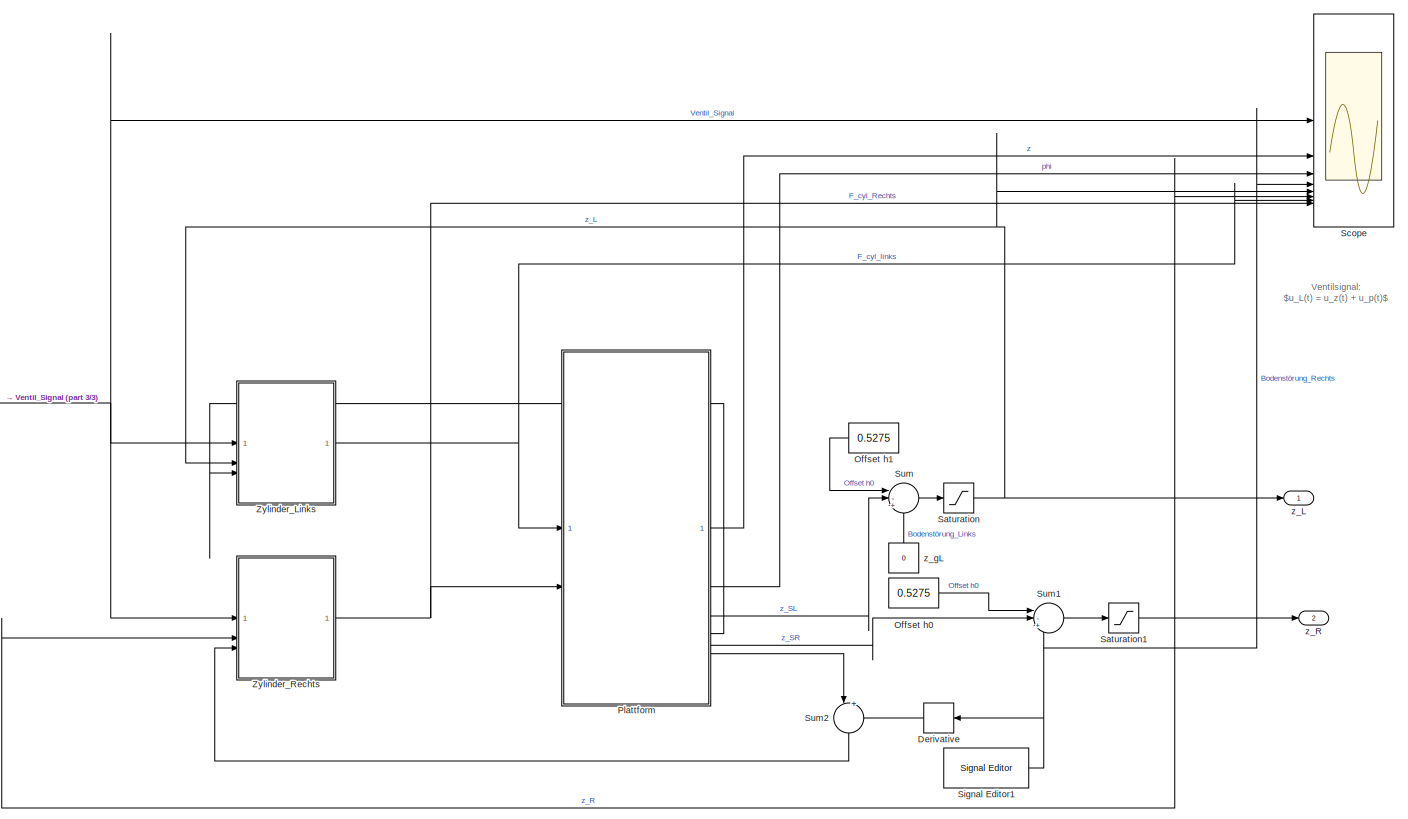
[diagram: root canvas - part 1/3, most of the canvas]
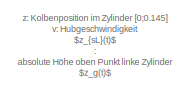
[diagram: root canvas - part 2/3, top left region]
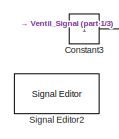
[diagram: root canvas - part 3/3, middle left region]
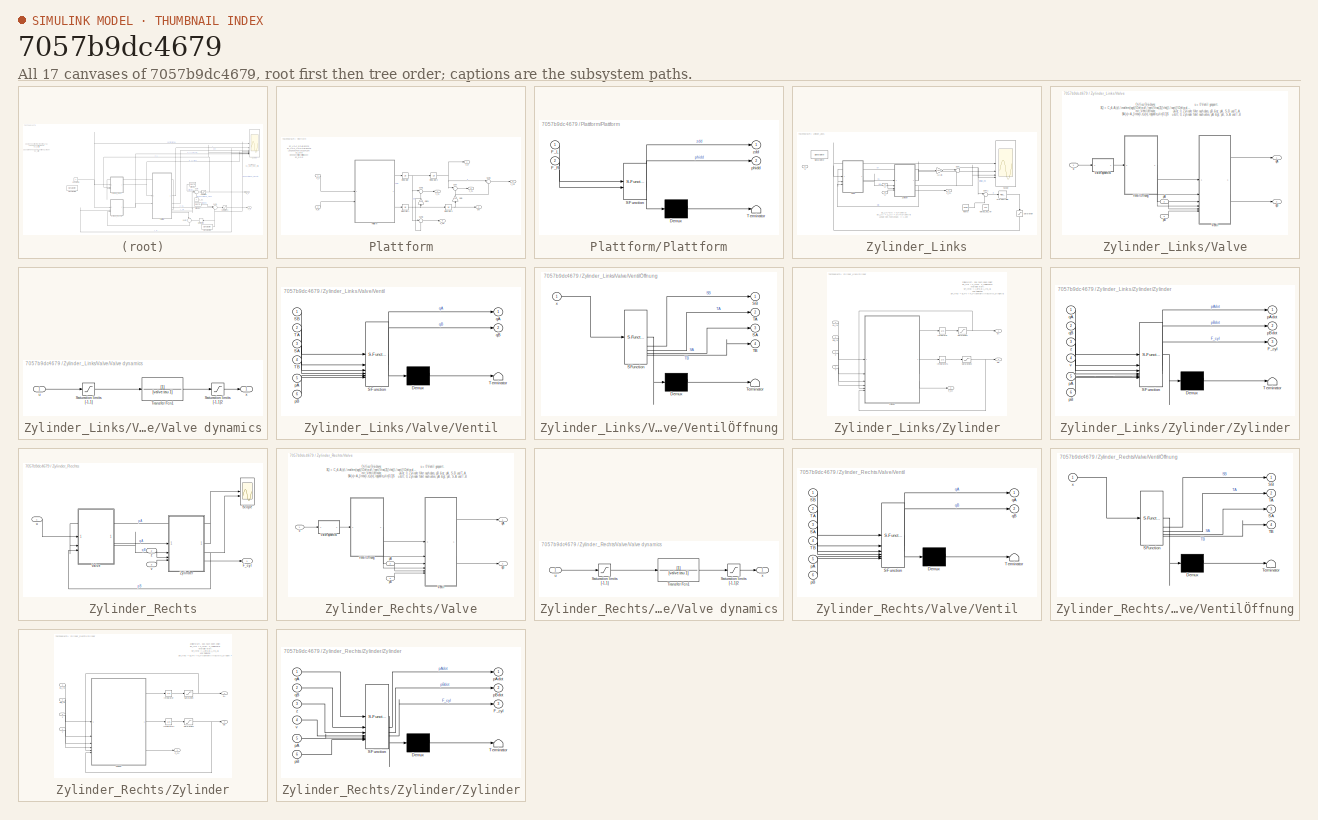
[diagram: thumbnail index - all 17 canvases of the model, root first then tree order]
MODEL slx_7057b9dc4679
KIND model
CONFIG AbsTol = auto
CONFIG EnableMultiTasking = off
CONFIG FixedStep = auto
CONFIG InitFcn = hyd_parameter
CONFIG MaxStep = auto
CONFIG MinStep = auto
CONFIG RelTol = 1e-3
CONFIG SampleTimeConstraint = Unconstrained
CONFIG SolverName = VariableStepAuto
CONFIG StartTime = 0.0
CONFIG StopTime = 30
BLOCK [Constant] Constant3
BLOCK [Derivative] Derivative
  NameLocation = top
BLOCK [Constant] Offset h0
  Value = 0.5275
BLOCK [Constant] Offset h1
  NameLocation = top
  Value = 0.5275
BLOCK [SubSystem] Plattform
BLOCK [Inport] Plattform/F_L
BLOCK [Inport] Plattform/F_R
  Port = 2
BLOCK [Gain] Plattform/Gain
  Gain = 0.9
  NameLocation = right
BLOCK [Gain] Plattform/Gain1
  Gain = 0.9
  NameLocation = right
BLOCK [Integrator] Plattform/Integrator
BLOCK [Integrator] Plattform/Integrator1
BLOCK [Integrator] Plattform/Integrator2
  InitialCondition = 0.6
BLOCK [Integrator] Plattform/Integrator3
BLOCK [SubSystem] Plattform/Plattform
  ErrorFcn = Stateflow.Translate.translate
  PermitHierarchicalResolution = ExplicitOnly
  SFBlockType = MATLAB Function
  TreatAsAtomicUnit = on
BLOCK [Demux] Plattform/Plattform/ Demux 
  Outputs = 1
BLOCK [S-Function] Plattform/Plattform/ SFunction 
  EnableBusSupport = off
  FunctionName = sf_sfun
  PortCounts = [2 3]
  SFcnIsStateOwnerBlock = off
  SFunctionDeploymentMode = off
  Tag = Stateflow S-Function 7
BLOCK [Terminator] Plattform/Plattform/ Terminator 
BLOCK [Inport] Plattform/Plattform/F_L
BLOCK [Inport] Plattform/Plattform/F_R
  Port = 2
BLOCK [Outport] Plattform/Plattform/phidd
  Port = 2
BLOCK [Outport] Plattform/Plattform/zdd
BLOCK [Sum] Plattform/Sum
  Inputs = |++
BLOCK [Sum] Plattform/Sum1
  Inputs = |++
BLOCK [Sum] Plattform/Sum2
  Inputs = |+-
BLOCK [Sum] Plattform/Sum3
  Inputs = |+-
BLOCK [Outport] Plattform/phi
  Port = 2
BLOCK [Outport] Plattform/v_sL
  Port = 4
BLOCK [Outport] Plattform/v_sR
  Port = 6
BLOCK [Outport] Plattform/z_p
BLOCK [Outport] Plattform/z_sL
  Port = 3
BLOCK [Outport] Plattform/z_sR
  Port = 5
BLOCK [Saturate] Saturation
  LowerLimit = 0
  UpperLimit = 0.145
BLOCK [Saturate] Saturation1
  LowerLimit = 0
  UpperLimit = 0.145
BLOCK [Scope] Scope
  ActiveDisplayString = 7
  ActiveDisplayYMaximum = 66545.684568252938
  ActiveDisplayYMinimum = -28869.174120408497
  ContainerLayout = {"WindowBounds":[801,1300,866,733]}
  Floating = off
  GraphicalSettings = {"AxesScalingProperties":{"AlignXAxis":"Center","AlignYAxis":"Center","AutoScaleXAxisLimits":false,"AxesScaling":"Manual","AxesScalingNumUpdates":10,"ExpandOnly":true,"ScaleAxesLimitsAtStop":false,"XAxisDataRange":100,"YAxisDataRange":80},"DisplayProperties":{"ColorOrder":["auto","auto","auto","auto","auto","auto","auto","auto","auto","auto","auto","auto","auto","auto","auto","auto","auto","auto",...<+5025ch>
  LayoutDimensionsString = [4, 2]
  MultipleDisplayCache = [{"MaxYLimMag":1.1,"MaxYLimReal":1.1,"MinYLimMag":0.9,"MinYLimReal":0.9,"PlotAsMagnitudePhase":false,"ShowGrid":true,"ShowLegend":false,"Title":"%<SignalLabel>","YLabel":""},{"MaxYLimMag":0.70736112197466661,"MaxYLimReal":0.70736112197466661,"MinYLimMag":0.58807098644725919,"MinYLimReal":0.58807098644725919,"PlotAsMagnitudePhase":false,"ShowGrid":true,"ShowLegend":false,"Title":"%<SignalLabel>","Y...<+1215ch>
  NumInputPorts = 8
  ScopeFrameLocation = window
  WasSavedAsWebScope = on
  WindowPosition = [390.000000,199.000000,785.000000,667.000000,]
BLOCK [Reference] Signal Editor1  REF=SignalEditorBlockLib/Signal Editor
  LibrarySourceBlock = simulink/Sources/Signal Editor
  SourceBlock = SignalEditorBlockLib/Signal Editor
  SourceType = SignalEditor
  UserDataPersistent = on
BLOCK [Reference] Signal Editor2  REF=SignalEditorBlockLib/Signal Editor
  LibrarySourceBlock = simulink/Sources/Signal Editor
  SourceBlock = SignalEditorBlockLib/Signal Editor
  SourceType = SignalEditor
  UserDataPersistent = on
BLOCK [Sum] Sum
  Inputs = |-+-
BLOCK [Sum] Sum1
  Inputs = |-+-
BLOCK [Sum] Sum2
  Inputs = |+-
  NameLocation = left
BLOCK [SubSystem] Zylinder_Links
BLOCK [Gain] Zylinder_Links/AA//AB
  Gain = cyl.AA/cyl.AB
BLOCK [Outport] Zylinder_Links/F_cyl
BLOCK [Reference] Zylinder_Links/PID Controller  REF=slpidlib/PID Controller
  LibrarySourceBlock = simulink/Continuous/PID Controller
  SourceBlock = slpidlib/PID Controller
  SourceType = PID 1dof
BLOCK [Reference] Zylinder_Links/Ramp  REF=simulink/Sources/Ramp
  SourceBlock = simulink/Sources/Ramp
  SourceType = Ramp
BLOCK [Saturate] Zylinder_Links/Saturation
  LowerLimit = -1
  NameLocation = left
  UpperLimit = 1
BLOCK [Scope] Zylinder_Links/Scope
  ActiveDisplayYMaximum = 1.25
  ActiveDisplayYMinimum = -1.25
  DataLoggingVariableName = ScopeData1
  Floating = off
  GraphicalSettings = {"Style":{"BackgroundColor":[0.12941176470588237,0.12941176470588237,0.12941176470588237],"AxesColor":[0.07058823529411765,0.07058823529411765,0.07058823529411765],"LabelsColor":[0.8509803921568627,0.8509803921568627,0.8509803921568627],"PreserveColors":false,"Visible":[true,true,true,true,true,true],"LineStyle":["-","-","-","-","-","-"],"LineWidth":[1.5,1.5,1.5,1.5,1.5,1.5],"BarWidth":[0.9,0.9,0....<+3933ch>
  LayoutDimensionsString = [6, 1]
  MultipleDisplayCache = [{"MaxYLimMag":1.25,"MaxYLimReal":1.25,"MinYLimMag":0,"MinYLimReal":-1.25,"PlotAsMagnitudePhase":false,"ShowGrid":true,"ShowLegend":false,"Title":"%<SignalLabel>","YLabel":""},{"MaxYLimMag":1.3941712703221392E+7,"MaxYLimReal":1.3941712703221392E+7,"MinYLimMag":0,"MinYLimReal":-1.43796807813571E+6,"PlotAsMagnitudePhase":false,"ShowGrid":true,"ShowLegend":false,"Title":"%<SignalLabel>","YLabel":""},...<+761ch>
  NumInputPorts = 6
  ScopeFrameLocation = window
  WasSavedAsWebScope = on
  WindowPosition = [247.000000,162.000000,750.000000,692.000000,]
BLOCK [Reference] Zylinder_Links/Signal Editor  REF=SignalEditorBlockLib/Signal Editor
  LibrarySourceBlock = simulink/Sources/Signal Editor
  SourceBlock = SignalEditorBlockLib/Signal Editor
  SourceType = SignalEditor
  UserDataPersistent = on
BLOCK [Sum] Zylinder_Links/Sum
  Inputs = |-+
BLOCK [Sum] Zylinder_Links/Sum1
  Inputs = |-+
BLOCK [SubSystem] Zylinder_Links/Valve
BLOCK [SubSystem] Zylinder_Links/Valve/Valve dynamics
BLOCK [Saturate] Zylinder_Links/Valve/Valve dynamics/Saturation limits [-1,1]
  LowerLimit = -1
  UpperLimit = 1
BLOCK [Saturate] Zylinder_Links/Valve/Valve dynamics/Saturation limits [-1,1]2
  LowerLimit = -1
  UpperLimit = 1
BLOCK [TransferFcn] Zylinder_Links/Valve/Valve dynamics/Transfer Fcn1
  Denominator = [valve.tau 1]
BLOCK [Inport] Zylinder_Links/Valve/Valve dynamics/u
BLOCK [Outport] Zylinder_Links/Valve/Valve dynamics/x
  VectorParamsAs1DForOutWhenUnconnected = off
BLOCK [SubSystem] Zylinder_Links/Valve/Ventil
  ErrorFcn = Stateflow.Translate.translate
  PermitHierarchicalResolution = ExplicitOnly
  SFBlockType = MATLAB Function
  TreatAsAtomicUnit = on
BLOCK [Demux] Zylinder_Links/Valve/Ventil/ Demux 
  Outputs = 1
BLOCK [S-Function] Zylinder_Links/Valve/Ventil/ SFunction 
  EnableBusSupport = off
  FunctionName = sf_sfun
  PortCounts = [6 3]
  SFcnIsStateOwnerBlock = off
  SFunctionDeploymentMode = off
  Tag = Stateflow S-Function 2
BLOCK [Terminator] Zylinder_Links/Valve/Ventil/ Terminator 
BLOCK [Inport] Zylinder_Links/Valve/Ventil/SA
  Port = 3
BLOCK [Inport] Zylinder_Links/Valve/Ventil/SB
BLOCK [Inport] Zylinder_Links/Valve/Ventil/TA
  Port = 2
BLOCK [Inport] Zylinder_Links/Valve/Ventil/TB
  Port = 4
BLOCK [Inport] Zylinder_Links/Valve/Ventil/pA
  Port = 5
BLOCK [Inport] Zylinder_Links/Valve/Ventil/pB
  Port = 6
BLOCK [Outport] Zylinder_Links/Valve/Ventil/qA
BLOCK [Outport] Zylinder_Links/Valve/Ventil/qB
  Port = 2
BLOCK [SubSystem] Zylinder_Links/Valve/VentilÖffnung
  ErrorFcn = Stateflow.Translate.translate
  PermitHierarchicalResolution = ExplicitOnly
  SFBlockType = MATLAB Function
  TreatAsAtomicUnit = on
BLOCK [Demux] Zylinder_Links/Valve/VentilÖffnung/ Demux 
  Outputs = 1
BLOCK [S-Function] Zylinder_Links/Valve/VentilÖffnung/ SFunction 
  EnableBusSupport = off
  FunctionName = sf_sfun
  PortCounts = [1 5]
  SFcnIsStateOwnerBlock = off
  SFunctionDeploymentMode = off
  Tag = Stateflow S-Function 3
BLOCK [Terminator] Zylinder_Links/Valve/VentilÖffnung/ Terminator 
BLOCK [Outport] Zylinder_Links/Valve/VentilÖffnung/SA
  Port = 3
BLOCK [Outport] Zylinder_Links/Valve/VentilÖffnung/SB
BLOCK [Outport] Zylinder_Links/Valve/VentilÖffnung/TA
  Port = 2
BLOCK [Outport] Zylinder_Links/Valve/VentilÖffnung/TB
  Port = 4
BLOCK [Inport] Zylinder_Links/Valve/VentilÖffnung/x
BLOCK [Inport] Zylinder_Links/Valve/pA
  Port = 2
BLOCK [Inport] Zylinder_Links/Valve/pB
  Port = 3
BLOCK [Outport] Zylinder_Links/Valve/qA
BLOCK [Outport] Zylinder_Links/Valve/qB
  Port = 2
BLOCK [Inport] Zylinder_Links/Valve/u
BLOCK [SubSystem] Zylinder_Links/Zylinder
BLOCK [Outport] Zylinder_Links/Zylinder/F_cyl
  Port = 3
BLOCK [Integrator] Zylinder_Links/Zylinder/Integrator
  InitialCondition = valve.pT
BLOCK [Integrator] Zylinder_Links/Zylinder/Integrator1
  InitialCondition = 9e6
BLOCK [Saturate] Zylinder_Links/Zylinder/Saturation1
  LowerLimit = cyl.pMin
  UpperLimit = cyl.pMax
BLOCK [Saturate] Zylinder_Links/Zylinder/Saturation2
  LowerLimit = cyl.pMin
  UpperLimit = cyl.pMax
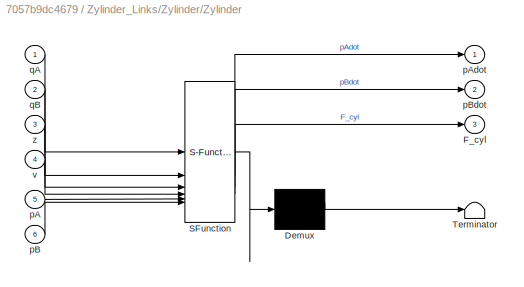
BLOCK [SubSystem] Zylinder_Links/Zylinder/Zylinder
  ErrorFcn = Stateflow.Translate.translate
  PermitHierarchicalResolution = ExplicitOnly
  SFBlockType = MATLAB Function
  TreatAsAtomicUnit = on
BLOCK [Demux] Zylinder_Links/Zylinder/Zylinder/ Demux 
  Outputs = 1
BLOCK [S-Function] Zylinder_Links/Zylinder/Zylinder/ SFunction 
  EnableBusSupport = off
  FunctionName = sf_sfun
  PortCounts = [6 4]
  SFcnIsStateOwnerBlock = off
  SFunctionDeploymentMode = off
  Tag = Stateflow S-Function 1
BLOCK [Terminator] Zylinder_Links/Zylinder/Zylinder/ Terminator 
BLOCK [Outport] Zylinder_Links/Zylinder/Zylinder/F_cyl
  Port = 3
BLOCK [Inport] Zylinder_Links/Zylinder/Zylinder/pA
  Port = 5
BLOCK [Outport] Zylinder_Links/Zylinder/Zylinder/pAdot
BLOCK [Inport] Zylinder_Links/Zylinder/Zylinder/pB
  Port = 6
BLOCK [Outport] Zylinder_Links/Zylinder/Zylinder/pBdot
  Port = 2
BLOCK [Inport] Zylinder_Links/Zylinder/Zylinder/qA
BLOCK [Inport] Zylinder_Links/Zylinder/Zylinder/qB
  Port = 2
BLOCK [Inport] Zylinder_Links/Zylinder/Zylinder/v
  Port = 4
BLOCK [Inport] Zylinder_Links/Zylinder/Zylinder/z
  Port = 3
BLOCK [Outport] Zylinder_Links/Zylinder/pA
BLOCK [Outport] Zylinder_Links/Zylinder/pB
  Port = 2
BLOCK [Inport] Zylinder_Links/Zylinder/qA_IN
BLOCK [Inport] Zylinder_Links/Zylinder/qB_IN
  Port = 2
BLOCK [Inport] Zylinder_Links/Zylinder/v
  Port = 4
BLOCK [Inport] Zylinder_Links/Zylinder/z
  Port = 3
BLOCK [Constant] Zylinder_Links/deltap_eq_ref
  NameLocation = right
  Value = 2e6
BLOCK [Inport] Zylinder_Links/u
BLOCK [Inport] Zylinder_Links/v
  Port = 3
BLOCK [Inport] Zylinder_Links/z
  Port = 2
BLOCK [SubSystem] Zylinder_Rechts
BLOCK [Outport] Zylinder_Rechts/F_cyl
BLOCK [Scope] Zylinder_Rechts/Scope
  ActiveDisplayYMaximum = 1
  ActiveDisplayYMinimum = -1
  DataLoggingVariableName = ScopeData2
  Floating = off
  GraphicalSettings = {"Style":{"BackgroundColor":[0.12941176470588237,0.12941176470588237,0.12941176470588237],"AxesColor":[0.07058823529411765,0.07058823529411765,0.07058823529411765],"LabelsColor":[0.8509803921568627,0.8509803921568627,0.8509803921568627],"PreserveColors":false,"Visible":[true,true],"LineStyle":["-","-"],"LineWidth":[1.5,1.5],"BarWidth":[0.9,0.9],"LineColor":["auto","auto"],"LineFaceAlpha":[1,1],"Li...<+2435ch>
  LayoutDimensionsString = [2, 1]
  MultipleDisplayCache = [{"MaxYLimMag":1,"MaxYLimReal":1,"MinYLimMag":0,"MinYLimReal":-1,"PlotAsMagnitudePhase":false,"ShowGrid":true,"ShowLegend":false,"Title":"%<SignalLabel>","YLabel":""},{"MaxYLimMag":1,"MaxYLimReal":1,"MinYLimMag":0,"MinYLimReal":-1,"PlotAsMagnitudePhase":false,"ShowGrid":true,"ShowLegend":false,"Title":"%<SignalLabel>","YLabel":""}]
  NumInputPorts = 2
  ScopeFrameLocation = window
  WasSavedAsWebScope = on
  WindowPosition = [726.000000,289.000000,560.000000,420.000000,]
BLOCK [SubSystem] Zylinder_Rechts/Valve
BLOCK [SubSystem] Zylinder_Rechts/Valve/Valve dynamics
BLOCK [Saturate] Zylinder_Rechts/Valve/Valve dynamics/Saturation limits [-1,1]
  LowerLimit = -1
  UpperLimit = 1
BLOCK [Saturate] Zylinder_Rechts/Valve/Valve dynamics/Saturation limits [-1,1]2
  LowerLimit = -1
  UpperLimit = 1
BLOCK [TransferFcn] Zylinder_Rechts/Valve/Valve dynamics/Transfer Fcn1
  Denominator = [valve.tau 1]
BLOCK [Inport] Zylinder_Rechts/Valve/Valve dynamics/u
BLOCK [Outport] Zylinder_Rechts/Valve/Valve dynamics/x
  VectorParamsAs1DForOutWhenUnconnected = off
BLOCK [SubSystem] Zylinder_Rechts/Valve/Ventil
  ErrorFcn = Stateflow.Translate.translate
  PermitHierarchicalResolution = ExplicitOnly
  SFBlockType = MATLAB Function
  TreatAsAtomicUnit = on
BLOCK [Demux] Zylinder_Rechts/Valve/Ventil/ Demux 
  Outputs = 1
BLOCK [S-Function] Zylinder_Rechts/Valve/Ventil/ SFunction 
  EnableBusSupport = off
  FunctionName = sf_sfun
  PortCounts = [6 3]
  SFcnIsStateOwnerBlock = off
  SFunctionDeploymentMode = off
  Tag = Stateflow S-Function 4
BLOCK [Terminator] Zylinder_Rechts/Valve/Ventil/ Terminator 
BLOCK [Inport] Zylinder_Rechts/Valve/Ventil/SA
  Port = 3
BLOCK [Inport] Zylinder_Rechts/Valve/Ventil/SB
BLOCK [Inport] Zylinder_Rechts/Valve/Ventil/TA
  Port = 2
BLOCK [Inport] Zylinder_Rechts/Valve/Ventil/TB
  Port = 4
BLOCK [Inport] Zylinder_Rechts/Valve/Ventil/pA
  Port = 5
BLOCK [Inport] Zylinder_Rechts/Valve/Ventil/pB
  Port = 6
BLOCK [Outport] Zylinder_Rechts/Valve/Ventil/qA
BLOCK [Outport] Zylinder_Rechts/Valve/Ventil/qB
  Port = 2
BLOCK [SubSystem] Zylinder_Rechts/Valve/VentilÖffnung
  ErrorFcn = Stateflow.Translate.translate
  PermitHierarchicalResolution = ExplicitOnly
  SFBlockType = MATLAB Function
  TreatAsAtomicUnit = on
BLOCK [Demux] Zylinder_Rechts/Valve/VentilÖffnung/ Demux 
  Outputs = 1
BLOCK [S-Function] Zylinder_Rechts/Valve/VentilÖffnung/ SFunction 
  EnableBusSupport = off
  FunctionName = sf_sfun
  PortCounts = [1 5]
  SFcnIsStateOwnerBlock = off
  SFunctionDeploymentMode = off
  Tag = Stateflow S-Function 5
BLOCK [Terminator] Zylinder_Rechts/Valve/VentilÖffnung/ Terminator 
BLOCK [Outport] Zylinder_Rechts/Valve/VentilÖffnung/SA
  Port = 3
BLOCK [Outport] Zylinder_Rechts/Valve/VentilÖffnung/SB
BLOCK [Outport] Zylinder_Rechts/Valve/VentilÖffnung/TA
  Port = 2
BLOCK [Outport] Zylinder_Rechts/Valve/VentilÖffnung/TB
  Port = 4
BLOCK [Inport] Zylinder_Rechts/Valve/VentilÖffnung/x
BLOCK [Inport] Zylinder_Rechts/Valve/pA
  Port = 2
BLOCK [Inport] Zylinder_Rechts/Valve/pB
  Port = 3
BLOCK [Outport] Zylinder_Rechts/Valve/qA
BLOCK [Outport] Zylinder_Rechts/Valve/qB
  Port = 2
BLOCK [Inport] Zylinder_Rechts/Valve/u
BLOCK [SubSystem] Zylinder_Rechts/Zylinder
BLOCK [Outport] Zylinder_Rechts/Zylinder/F_cyl
  Port = 3
BLOCK [Integrator] Zylinder_Rechts/Zylinder/Integrator
  InitialCondition = valve.pT
BLOCK [Integrator] Zylinder_Rechts/Zylinder/Integrator1
  InitialCondition = 9e6
BLOCK [Saturate] Zylinder_Rechts/Zylinder/Saturation
  LowerLimit = cyl.pMin
  UpperLimit = cyl.pMax
BLOCK [Saturate] Zylinder_Rechts/Zylinder/Saturation1
  LowerLimit = cyl.pMin
  UpperLimit = cyl.pMax
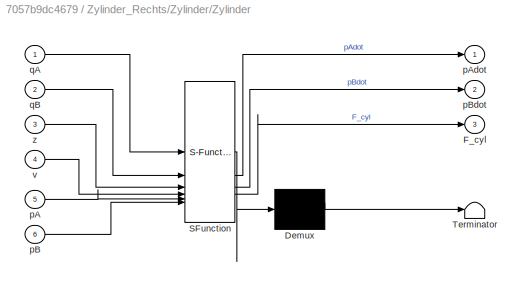
BLOCK [SubSystem] Zylinder_Rechts/Zylinder/Zylinder
  ErrorFcn = Stateflow.Translate.translate
  PermitHierarchicalResolution = ExplicitOnly
  SFBlockType = MATLAB Function
  TreatAsAtomicUnit = on
BLOCK [Demux] Zylinder_Rechts/Zylinder/Zylinder/ Demux 
  Outputs = 1
BLOCK [S-Function] Zylinder_Rechts/Zylinder/Zylinder/ SFunction 
  EnableBusSupport = off
  FunctionName = sf_sfun
  PortCounts = [6 4]
  SFcnIsStateOwnerBlock = off
  SFunctionDeploymentMode = off
  Tag = Stateflow S-Function 6
BLOCK [Terminator] Zylinder_Rechts/Zylinder/Zylinder/ Terminator 
BLOCK [Outport] Zylinder_Rechts/Zylinder/Zylinder/F_cyl
  Port = 3
BLOCK [Inport] Zylinder_Rechts/Zylinder/Zylinder/pA
  Port = 5
BLOCK [Outport] Zylinder_Rechts/Zylinder/Zylinder/pAdot
BLOCK [Inport] Zylinder_Rechts/Zylinder/Zylinder/pB
  Port = 6
BLOCK [Outport] Zylinder_Rechts/Zylinder/Zylinder/pBdot
  Port = 2
BLOCK [Inport] Zylinder_Rechts/Zylinder/Zylinder/qA
BLOCK [Inport] Zylinder_Rechts/Zylinder/Zylinder/qB
  Port = 2
BLOCK [Inport] Zylinder_Rechts/Zylinder/Zylinder/v
  Port = 4
BLOCK [Inport] Zylinder_Rechts/Zylinder/Zylinder/z
  Port = 3
BLOCK [Outport] Zylinder_Rechts/Zylinder/pA
BLOCK [Outport] Zylinder_Rechts/Zylinder/pB
  Port = 2
BLOCK [Inport] Zylinder_Rechts/Zylinder/qA_IN
BLOCK [Inport] Zylinder_Rechts/Zylinder/qB_IN
  Port = 2
BLOCK [Inport] Zylinder_Rechts/Zylinder/v
  Port = 4
BLOCK [Inport] Zylinder_Rechts/Zylinder/z
  Port = 3
BLOCK [Inport] Zylinder_Rechts/u
BLOCK [Inport] Zylinder_Rechts/v
  Port = 3
BLOCK [Inport] Zylinder_Rechts/z
  Port = 2
BLOCK [Outport] z_L
BLOCK [Outport] z_R
  Port = 2
BLOCK [Constant] z_gL
  NameLocation = right
  Value = 0
ANNOTATION (root): Ventilsignal: $u_L(t) = u_z(t) + u_p(t)$
ANNOTATION (root): z: Kolbenposition im Zylinder [0;0.145] v: Hubgeschwindigkeit $z_{sL}(t)$ : absolute Höhe oben Punkt linke Zylinder $z_g(t)$ : absolute Bodenhöhe Reifen starr, kein Feder
ANNOTATION Plattform: $z_L(t)=z_p(t) + l/2*\phi(t)$ $v_L(t) = z_L(t)' = z(t)'*l/2*\phi(t)'$ Länge des Fahrzeugs: l = 1.8m $z_p(t)$ Höhe der Plattformmittelpunkt $z_p(0)$
ANNOTATION Zylinder_Links: $z_L(t)=z(t) + l/2*\phi(t)$ $v_L(t) = z_L(t)' = z(t)'*l/2*\phi(t)'$ Länge des Fahrzeugs: l = 1.8m
ANNOTATION Zylinder_Links/Valve: u = 0 Ventil gesperrt. u> 0, Zylinder fährt nach oben, pB > pA, S-B und T-A u < 0, Zylinder fährt nach unten, pA > pB, S-A und T-B
ANNOTATION Zylinder_Links/Valve: Orifice-Gleichung: $Q = C_d\,A(x)\,\mathrm{sgn}(\Delta p)\,\sqrt{\frac{2}{\rho}}\,\sqrt{|\Delta p|}$ mit Ventilöffnung: $A(x)=A_{\max}\,a_v(x),\qquad a_v\in[0,1]$
ANNOTATION Zylinder_Links/Zylinder: Zyliderkraft, das nach oben zeigt: $F_{cyl} = F_{hyd}- F_{Reibung}$ Hydraulik Kraft: $F_{hyd} = A_B*p_B-A_A*p_A$ und Reibung: $F_{fric} = B_v*v + F_c*\tanh\left(\frac{v}{v_s}\right)$ und Druck $\dot{p}_A = \frac{\beta_e}{V_A}*( q_A - \dot{V}_A - q_{Leak} )$
ANNOTATION Zylinder_Rechts/Valve: u = 0 Ventil gesperrt. u> 0, Zylinder fährt nach oben, pB > pA, S-B und T-A u < 0, Zylinder fährt nach unten, pA > pB, S-A und T-B
ANNOTATION Zylinder_Rechts/Valve: Orifice-Gleichung: $Q = C_d\,A(x)\,\mathrm{sgn}(\Delta p)\,\sqrt{\frac{2}{\rho}}\,\sqrt{|\Delta p|}$ mit Ventilöffnung: $A(x)=A_{\max}\,a_v(x),\qquad a_v\in[0,1]$
ANNOTATION Zylinder_Rechts/Zylinder: Zyliderkraft, das nach oben zeigt: $F_{cyl} = F_{hyd}- F_{Reibung}$ Hydraulik Kraft: $F_{hyd} = A_B*p_B-A_A*p_A$ und Reibung: $F_{fric} = B_v*v + F_c*\tanh\left(\frac{v}{v_s}\right)$ und Druck $\dot{p}_A = \frac{\beta_e}{V_A}*( q_A - \dot{V}_A - q_{Leak} )$
NET Constant3:1 -> Scope:1, Zylinder_Links:1, Zylinder_Rechts:1
LINE Derivative:1 -> Sum2:2
LINE Offset h0:1 -> Sum1:1
LINE Offset h1:1 -> Sum:1
LINE Plattform/F_L:1 -> Plattform/Plattform:1
LINE Plattform/F_R:1 -> Plattform/Plattform:2
NET Plattform/Gain1:1 -> Plattform/Sum1:2, Plattform/Sum3:2
NET Plattform/Gain:1 -> Plattform/Sum2:2, Plattform/Sum:2
NET Plattform/Integrator1:1 -> Plattform/Gain1:1, Plattform/Integrator3:1
NET Plattform/Integrator2:1 -> Plattform/Sum2:1, Plattform/Sum:1, Plattform/z_p:1
NET Plattform/Integrator3:1 -> Plattform/Gain:1, Plattform/phi:1
NET Plattform/Integrator:1 -> Plattform/Integrator2:1, Plattform/Sum1:1, Plattform/Sum3:1
LINE Plattform/Plattform:1 -> Plattform/Integrator:1
LINE Plattform/Plattform:2 -> Plattform/Integrator1:1
LINE Plattform/Sum1:1 -> Plattform/v_sL:1
LINE Plattform/Sum2:1 -> Plattform/z_sR:1
LINE Plattform/Sum3:1 -> Plattform/v_sR:1
LINE Plattform/Sum:1 -> Plattform/z_sL:1
LINE Plattform:1 -> Scope:2
LINE Plattform:2 -> Scope:3
LINE Plattform:3 -> Sum:2
LINE Plattform:4 -> Zylinder_Links:3
LINE Plattform:5 -> Sum1:2
LINE Plattform:6 -> Sum2:1
NET Saturation1:1 -> Scope:6, Zylinder_Rechts:2, z_R:1
NET Saturation:1 -> Scope:5, Zylinder_Links:2, z_L:1
NET Signal Editor1:1 -> Derivative:1, Scope:4, Sum1:3
LINE Sum1:1 -> Saturation1:1
LINE Sum2:1 -> Zylinder_Rechts:3
LINE Sum:1 -> Saturation:1
LINE Zylinder_Links/AA//AB:1 -> Zylinder_Links/Sum:1
LINE Zylinder_Links/PID Controller:1 -> Zylinder_Links/Saturation:1
LINE Zylinder_Links/Ramp:1 -> Zylinder_Links/Sum1:2
NET Zylinder_Links/Saturation:1 -> Zylinder_Links/Scope:1, Zylinder_Links/Valve:1
LINE Zylinder_Links/Sum1:1 -> Zylinder_Links/PID Controller:1
NET Zylinder_Links/Sum:1 -> Zylinder_Links/Scope:4, Zylinder_Links/Sum1:1
LINE Zylinder_Links/Valve/Valve dynamics/Saturation limits [-1,1]2:1 -> Zylinder_Links/Valve/Valve dynamics/x:1
LINE Zylinder_Links/Valve/Valve dynamics/Saturation limits [-1,1]:1 -> Zylinder_Links/Valve/Valve dynamics/Transfer Fcn1:1
LINE Zylinder_Links/Valve/Valve dynamics/Transfer Fcn1:1 -> Zylinder_Links/Valve/Valve dynamics/Saturation limits [-1,1]2:1
LINE Zylinder_Links/Valve/Valve dynamics/u:1 -> Zylinder_Links/Valve/Valve dynamics/Saturation limits [-1,1]:1
LINE Zylinder_Links/Valve/Valve dynamics:1 -> Zylinder_Links/Valve/VentilÖffnung:1
LINE Zylinder_Links/Valve/Ventil:1 -> Zylinder_Links/Valve/qA:1
LINE Zylinder_Links/Valve/Ventil:2 -> Zylinder_Links/Valve/qB:1
LINE Zylinder_Links/Valve/VentilÖffnung:1 -> Zylinder_Links/Valve/Ventil:1
LINE Zylinder_Links/Valve/VentilÖffnung:2 -> Zylinder_Links/Valve/Ventil:2
LINE Zylinder_Links/Valve/VentilÖffnung:3 -> Zylinder_Links/Valve/Ventil:3
LINE Zylinder_Links/Valve/VentilÖffnung:4 -> Zylinder_Links/Valve/Ventil:4
LINE Zylinder_Links/Valve/pA:1 -> Zylinder_Links/Valve/Ventil:5
LINE Zylinder_Links/Valve/pB:1 -> Zylinder_Links/Valve/Ventil:6
LINE Zylinder_Links/Valve/u:1 -> Zylinder_Links/Valve/Valve dynamics:1
LINE Zylinder_Links/Valve:1 -> Zylinder_Links/Zylinder:1
LINE Zylinder_Links/Valve:2 -> Zylinder_Links/Zylinder:2
LINE Zylinder_Links/Zylinder/Integrator1:1 -> Zylinder_Links/Zylinder/Saturation2:1
LINE Zylinder_Links/Zylinder/Integrator:1 -> Zylinder_Links/Zylinder/Saturation1:1
NET Zylinder_Links/Zylinder/Saturation1:1 -> Zylinder_Links/Zylinder/Zylinder:5, Zylinder_Links/Zylinder/pA:1
NET Zylinder_Links/Zylinder/Saturation2:1 -> Zylinder_Links/Zylinder/Zylinder:6, Zylinder_Links/Zylinder/pB:1
LINE Zylinder_Links/Zylinder/Zylinder:1 -> Zylinder_Links/Zylinder/Integrator:1
LINE Zylinder_Links/Zylinder/Zylinder:2 -> Zylinder_Links/Zylinder/Integrator1:1
LINE Zylinder_Links/Zylinder/Zylinder:3 -> Zylinder_Links/Zylinder/F_cyl:1
LINE Zylinder_Links/Zylinder/qA_IN:1 -> Zylinder_Links/Zylinder/Zylinder:1
LINE Zylinder_Links/Zylinder/qB_IN:1 -> Zylinder_Links/Zylinder/Zylinder:2
LINE Zylinder_Links/Zylinder/v:1 -> Zylinder_Links/Zylinder/Zylinder:4
LINE Zylinder_Links/Zylinder/z:1 -> Zylinder_Links/Zylinder/Zylinder:3
NET Zylinder_Links/Zylinder:1 -> Zylinder_Links/AA//AB:1, Zylinder_Links/Scope:2, Zylinder_Links/Valve:2
NET Zylinder_Links/Zylinder:2 -> Zylinder_Links/Scope:3, Zylinder_Links/Sum:2, Zylinder_Links/Valve:3
LINE Zylinder_Links/Zylinder:3 -> Zylinder_Links/F_cyl:1
LINE Zylinder_Links/v:1 -> Zylinder_Links/Zylinder:4
LINE Zylinder_Links/z:1 -> Zylinder_Links/Zylinder:3
NET Zylinder_Links:1 -> Plattform:1, Scope:7
LINE Zylinder_Rechts/Valve/Valve dynamics/Saturation limits [-1,1]2:1 -> Zylinder_Rechts/Valve/Valve dynamics/x:1
LINE Zylinder_Rechts/Valve/Valve dynamics/Saturation limits [-1,1]:1 -> Zylinder_Rechts/Valve/Valve dynamics/Transfer Fcn1:1
LINE Zylinder_Rechts/Valve/Valve dynamics/Transfer Fcn1:1 -> Zylinder_Rechts/Valve/Valve dynamics/Saturation limits [-1,1]2:1
LINE Zylinder_Rechts/Valve/Valve dynamics/u:1 -> Zylinder_Rechts/Valve/Valve dynamics/Saturation limits [-1,1]:1
LINE Zylinder_Rechts/Valve/Valve dynamics:1 -> Zylinder_Rechts/Valve/VentilÖffnung:1
LINE Zylinder_Rechts/Valve/Ventil:1 -> Zylinder_Rechts/Valve/qA:1
LINE Zylinder_Rechts/Valve/Ventil:2 -> Zylinder_Rechts/Valve/qB:1
LINE Zylinder_Rechts/Valve/VentilÖffnung:1 -> Zylinder_Rechts/Valve/Ventil:1
LINE Zylinder_Rechts/Valve/VentilÖffnung:2 -> Zylinder_Rechts/Valve/Ventil:2
LINE Zylinder_Rechts/Valve/VentilÖffnung:3 -> Zylinder_Rechts/Valve/Ventil:3
LINE Zylinder_Rechts/Valve/VentilÖffnung:4 -> Zylinder_Rechts/Valve/Ventil:4
LINE Zylinder_Rechts/Valve/pA:1 -> Zylinder_Rechts/Valve/Ventil:5
LINE Zylinder_Rechts/Valve/pB:1 -> Zylinder_Rechts/Valve/Ventil:6
LINE Zylinder_Rechts/Valve/u:1 -> Zylinder_Rechts/Valve/Valve dynamics:1
LINE Zylinder_Rechts/Valve:1 -> Zylinder_Rechts/Zylinder:1
LINE Zylinder_Rechts/Valve:2 -> Zylinder_Rechts/Zylinder:2
LINE Zylinder_Rechts/Zylinder/Integrator1:1 -> Zylinder_Rechts/Zylinder/Saturation1:1
LINE Zylinder_Rechts/Zylinder/Integrator:1 -> Zylinder_Rechts/Zylinder/Saturation:1
NET Zylinder_Rechts/Zylinder/Saturation1:1 -> Zylinder_Rechts/Zylinder/Zylinder:6, Zylinder_Rechts/Zylinder/pB:1
NET Zylinder_Rechts/Zylinder/Saturation:1 -> Zylinder_Rechts/Zylinder/Zylinder:5, Zylinder_Rechts/Zylinder/pA:1
LINE Zylinder_Rechts/Zylinder/Zylinder:1 -> Zylinder_Rechts/Zylinder/Integrator:1
LINE Zylinder_Rechts/Zylinder/Zylinder:2 -> Zylinder_Rechts/Zylinder/Integrator1:1
LINE Zylinder_Rechts/Zylinder/Zylinder:3 -> Zylinder_Rechts/Zylinder/F_cyl:1
LINE Zylinder_Rechts/Zylinder/qA_IN:1 -> Zylinder_Rechts/Zylinder/Zylinder:1
LINE Zylinder_Rechts/Zylinder/qB_IN:1 -> Zylinder_Rechts/Zylinder/Zylinder:2
LINE Zylinder_Rechts/Zylinder/v:1 -> Zylinder_Rechts/Zylinder/Zylinder:4
LINE Zylinder_Rechts/Zylinder/z:1 -> Zylinder_Rechts/Zylinder/Zylinder:3
NET Zylinder_Rechts/Zylinder:1 -> Zylinder_Rechts/Scope:1, Zylinder_Rechts/Valve:2
NET Zylinder_Rechts/Zylinder:2 -> Zylinder_Rechts/Scope:2, Zylinder_Rechts/Valve:3
LINE Zylinder_Rechts/Zylinder:3 -> Zylinder_Rechts/F_cyl:1
LINE Zylinder_Rechts/u:1 -> Zylinder_Rechts/Valve:1
LINE Zylinder_Rechts/v:1 -> Zylinder_Rechts/Zylinder:4
LINE Zylinder_Rechts/z:1 -> Zylinder_Rechts/Zylinder:3
NET Zylinder_Rechts:1 -> Plattform:2, Scope:8
LINE z_gL:1 -> Sum:3
note: NET lines group one-source signal fan-out (src -> all destinations, sorted); 1:1 wires keep LINE
CHART Plattform/Plattform states=1 transitions=1
  STATE_LABEL 'eML_blk_kernel()'
  STATE_LABEL 'SCRIPT:\nfunction [zdd, phidd] = platform_2dof(F_L, F_R)\ng   = 9.81;\nm_total = 6000;\nm_s = m_total/3;    \nl   = 1.8;           \n\nJphi = m_s * l^2 / 12;\n\n\nzdd = (F_L + F_R - m_s * g) / m_s;\n\n\nphidd = ( (l/2)*F_L - (l/2)*F_R ) / Jphi;\n\n\nend\n'
CHART Zylinder_Links/Zylinder/Zylinder states=1 transitions=1
  STATE_LABEL 'eML_blk_kernel()'
  STATE_LABEL 'SCRIPT:\nfunction [pAdot,pBdot,F_cyl] = cylinder(qA,qB,z,v,pA,pB)\ncyl.D = 0.09; % m datenblatt\ncyl.d = 0.07; %m datenblatt\ncyl.AB  =pi*0.09^2/4;       % m^2 (Kolbenseite) datenblatt\ncyl.AA  = pi*(0.09^2-0.07^2)/4;       % m^2 (Stangenseite)  datenblatt\ncyl.L   = 0.145;          % m datenblatt\ncyl.VA0 = 2e-4;         % m^3 geschätzt\ncyl.VB0 = 2e-4;         % m^3 geschätzt\ncyl.Vmin = 1e-5;        % m...<+853ch>'
CHART Zylinder_Links/Valve/Ventil states=1 transitions=1
  STATE_LABEL 'eML_blk_kernel()'
  STATE_LABEL 'SCRIPT:\nfunction [qA, qB] = valve_portflows(SB, TA, SA, TB, pA, pB)\n% Eingänge:\n%   SA, TA, SB, TB : relative Öffnungen [0..1]\n%       SA = P(Supply) -> A\n%       TA = A -> T(Tank)\n%       SB = P(Supply) -> B\n%       TB = B -> T(Tank)\n%   pA, pB         : Kammerdrücke\n%\n% Ausgänge:\n%   qA, qB         : Netto-Volumenstrom IN die Kammern A/B \n%                   (positiv bedeutet: Zufluss in die Kam...<+1292ch>'
CHART Zylinder_Links/Valve/VentilÖffnung states=1 transitions=1
  STATE_LABEL 'eML_blk_kernel()'
  STATE_LABEL 'SCRIPT:\nfunction [SB, TA, SA, TB] = relative_opening(x)\n% 4/3-Proportionalventil:\n% Eingabe x in [-1..1] -> relative Öffnungen SA, SB, TA, TB in [0..1]\n%   SA: P(Supply) -> A\n%   SB: P(Supply) -> B\n%   TA: A -> T(Tank)\n%   TB: B -> T(Tank)\n% Ventil-Parameter (typische Startwerte für Proportionalventil)\nvalve.udz = 0.05;   % Totzone (5%) um Nullstellung\n\n% Stützstellen für |x| nach Totzone-Normieru...<+2134ch>'
CHART Zylinder_Rechts/Valve/Ventil states=1 transitions=1
  STATE_LABEL 'eML_blk_kernel()'
  STATE_LABEL 'SCRIPT:\nfunction [qA, qB] = valve_portflows(SB, TA, SA, TB, pA, pB)\n% Eingänge:\n%   SA, TA, SB, TB : relative Öffnungen [0..1]\n%       SA = P(Supply) -> A\n%       TA = A -> T(Tank)\n%       SB = P(Supply) -> B\n%       TB = B -> T(Tank)\n%   pA, pB         : Kammerdrücke\n%\n% Ausgänge:\n%   qA, qB         : Netto-Volumenstrom IN die Kammern A/B \n%                   (positiv bedeutet: Zufluss in die Kam...<+1292ch>'
CHART Zylinder_Rechts/Valve/VentilÖffnung states=1 transitions=1
  STATE_LABEL 'eML_blk_kernel()'
  STATE_LABEL 'SCRIPT:\nfunction [SB, TA, SA, TB] = relative_opening(x)\n% 4/3-Proportionalventil:\n% Eingabe x in [-1..1] -> relative Öffnungen SA, SB, TA, TB in [0..1]\n%   SA: P(Supply) -> A\n%   SB: P(Supply) -> B\n%   TA: A -> T(Tank)\n%   TB: B -> T(Tank)\n% Ventil-Parameter (typische Startwerte für Proportionalventil)\nvalve.udz = 0.05;   % Totzone (5%) um Nullstellung\n\n% Stützstellen für |x| nach Totzone-Normieru...<+2134ch>'
CHART Zylinder_Rechts/Zylinder/Zylinder states=1 transitions=1
  STATE_LABEL 'eML_blk_kernel()'
  STATE_LABEL 'SCRIPT:\nfunction [pAdot,pBdot,F_cyl] = cylinder(qA,qB,z,v,pA,pB)\n% === Cylinder ===\ncyl.D = 0.09; % m datenblatt\ncyl.d = 0.07; %m datenblatt\ncyl.AB  =pi*0.09^2/4;       % m^2 (Kolbenseite) datenblatt\ncyl.AA  = pi*(0.09^2-0.07^2)/4;       % m^2 (Stangenseite)  datenblatt\ncyl.L   = 0.145;          % m datenblatt\ncyl.VA0 = 2e-4;         % m^3 geschätzt\ncyl.VB0 = 2e-4;         % m^3 geschätzt\ncyl.Vmin...<+862ch>'
CHART  states=0 transitions=0
CHART  states=0 transitions=0
CHART  states=0 transitions=0
CHART  states=0 transitions=0
CHART  states=0 transitions=0
CHART  states=0 transitions=0
CHART  states=0 transitions=0
